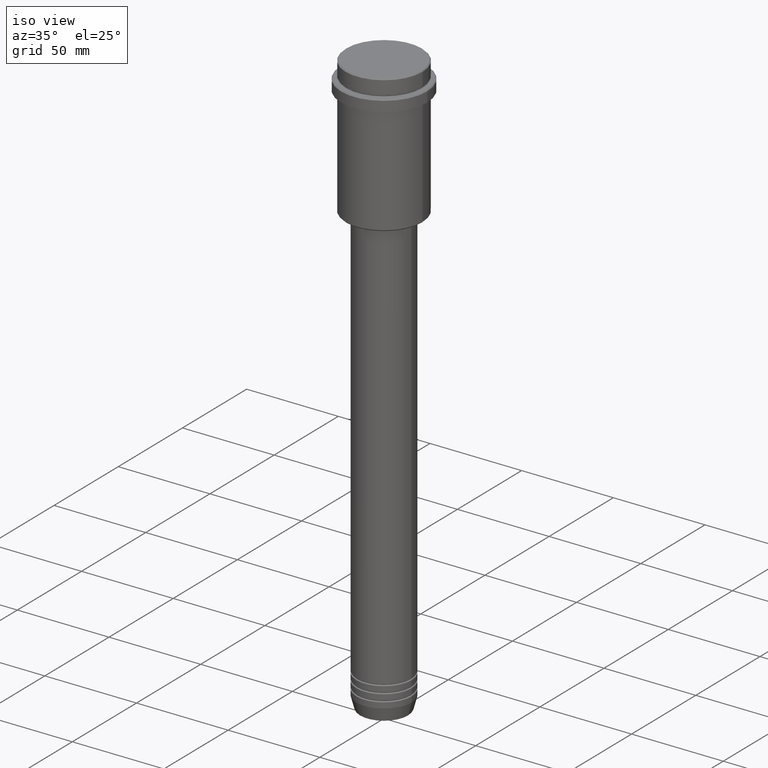
[diagram: clean part render]
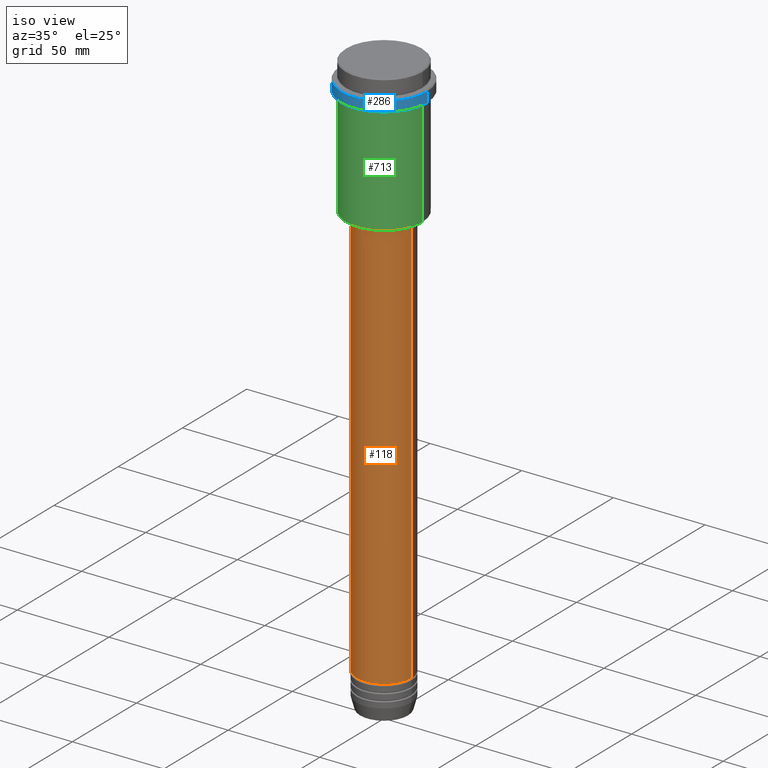
[diagram: same view with three faces highlighted in distinct colors, each labeled with its STEP entity id]
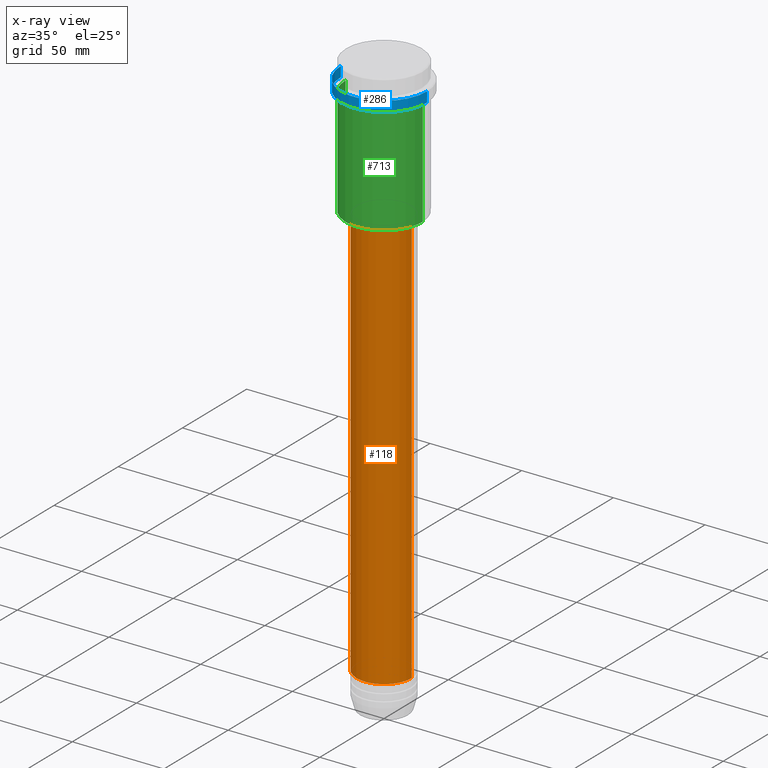
[diagram: x-ray of the same camera — body ghosted, the three highlighted faces saturated]
A machine part, iso view with three faces highlighted in distinct colors.
The next image is the same camera in x-ray (body ghosted, the three faces saturated) — at least one of them is partly hidden behind the body in this view.
Their STEP definitions:

[orange] entity #118 — the highlighted cylindrical surface (edge-blend (fillet) strip) has radius 15 mm, axis along (-0, -0, 1).
#29 = EDGE_CURVE ( 'NONE', #243, #1258, #860, .T. ) ;
#33 = DIRECTION ( 'NONE',  ( 1.000000000000000000, 0.000000000000000000, 0.000000000000000000 ) ) ;
#86 = CARTESIAN_POINT ( 'NONE',  ( -15.00000000000000000, 1.836970198721029589E-15, -300.9999999999998863 ) ) ;
#99 = AXIS2_PLACEMENT_3D ( 'NONE', #1326, #696, #1014 ) ;
#118 = ADVANCED_FACE ( 'NONE', ( #471 ), #1203, .T. ) ;
#148 = VECTOR ( 'NONE', #1082, 1000.000000000000000 ) ;
#243 = VERTEX_POINT ( 'NONE', #404 ) ;
#260 = DIRECTION ( 'NONE',  ( -0.000000000000000000, -0.000000000000000000, 1.000000000000000000 ) ) ;
#278 = CARTESIAN_POINT ( 'NONE',  ( -15.00000000000000000, 1.836970198721029589E-15, -75.99999999999992895 ) ) ;
#288 = ORIENTED_EDGE ( 'NONE', *, *, #29, .T. ) ;
#331 = DIRECTION ( 'NONE',  ( -0.000000000000000000, -0.000000000000000000, 1.000000000000000000 ) ) ;
#337 = CARTESIAN_POINT ( 'NONE',  ( -15.00000000000000000, 1.836970198721029589E-15, 0.000000000000000000 ) ) ;
#394 = EDGE_LOOP ( 'NONE', ( #1372, #815, #288, #406 ) ) ;
#404 = CARTESIAN_POINT ( 'NONE',  ( 15.00000000000000000, 0.000000000000000000, -300.9999999999998863 ) ) ;
#406 = ORIENTED_EDGE ( 'NONE', *, *, #1128, .F. ) ;
#450 = EDGE_CURVE ( 'NONE', #1270, #726, #1076, .T. ) ;
#471 = FACE_OUTER_BOUND ( 'NONE', #394, .T. ) ;
#480 = CARTESIAN_POINT ( 'NONE',  ( 0.000000000000000000, 0.000000000000000000, -300.9999999999998863 ) ) ;
#641 = CIRCLE ( 'NONE', #684, 15.00000000000000000 ) ;
#649 = EDGE_CURVE ( 'NONE', #1270, #243, #641, .T. ) ;
#682 = DIRECTION ( 'NONE',  ( 1.000000000000000000, 0.000000000000000000, 0.000000000000000000 ) ) ;
#684 = AXIS2_PLACEMENT_3D ( 'NONE', #480, #886, #682 ) ;
#696 = DIRECTION ( 'NONE',  ( -0.000000000000000000, -0.000000000000000000, 1.000000000000000000 ) ) ;
#726 = VERTEX_POINT ( 'NONE', #278 ) ;
#815 = ORIENTED_EDGE ( 'NONE', *, *, #649, .T. ) ;
#860 = LINE ( 'NONE', #1282, #148 ) ;
#871 = VECTOR ( 'NONE', #331, 1000.000000000000000 ) ;
#886 = DIRECTION ( 'NONE',  ( -0.000000000000000000, -0.000000000000000000, 1.000000000000000000 ) ) ;
#1014 = DIRECTION ( 'NONE',  ( 1.000000000000000000, 0.000000000000000000, 0.000000000000000000 ) ) ;
#1064 = CARTESIAN_POINT ( 'NONE',  ( 15.00000000000000000, 0.000000000000000000, -75.99999999999992895 ) ) ;
#1076 = LINE ( 'NONE', #337, #871 ) ;
#1082 = DIRECTION ( 'NONE',  ( -0.000000000000000000, -0.000000000000000000, 1.000000000000000000 ) ) ;
#1128 = EDGE_CURVE ( 'NONE', #726, #1258, #1340, .T. ) ;
#1141 = AXIS2_PLACEMENT_3D ( 'NONE', #1230, #260, #33 ) ;
#1203 = CYLINDRICAL_SURFACE ( 'NONE', #99, 15.00000000000000000 ) ;
#1230 = CARTESIAN_POINT ( 'NONE',  ( 0.000000000000000000, 0.000000000000000000, -75.99999999999992895 ) ) ;
#1258 = VERTEX_POINT ( 'NONE', #1064 ) ;
#1270 = VERTEX_POINT ( 'NONE', #86 ) ;
#1282 = CARTESIAN_POINT ( 'NONE',  ( 15.00000000000000000, 0.000000000000000000, 0.000000000000000000 ) ) ;
#1326 = CARTESIAN_POINT ( 'NONE',  ( 0.000000000000000000, 0.000000000000000000, 0.000000000000000000 ) ) ;
#1340 = CIRCLE ( 'NONE', #1141, 15.00000000000000000 ) ;
#1372 = ORIENTED_EDGE ( 'NONE', *, *, #450, .F. ) ;

[blue] entity #286 — the highlighted cylindrical surface (partial cylindrical patch) has radius 23.5 mm, axis along (-0, -0, 1).
#54 = DIRECTION ( 'NONE',  ( -0.000000000000000000, -0.000000000000000000, 1.000000000000000000 ) ) ;
#126 = AXIS2_PLACEMENT_3D ( 'NONE', #792, #1324, #1305 ) ;
#227 = VECTOR ( 'NONE', #768, 1000.000000000000000 ) ;
#235 = ORIENTED_EDGE ( 'NONE', *, *, #1288, .T. ) ;
#266 = EDGE_CURVE ( 'NONE', #580, #1083, #1198, .T. ) ;
#274 = AXIS2_PLACEMENT_3D ( 'NONE', #1148, #612, #604 ) ;
#286 = ADVANCED_FACE ( 'NONE', ( #951 ), #1056, .T. ) ;
#361 = CARTESIAN_POINT ( 'NONE',  ( 23.50000000000000355, 0.000000000000000000, -15.00000000000000000 ) ) ;
#409 = CARTESIAN_POINT ( 'NONE',  ( 0.000000000000000000, 0.000000000000000000, 0.000000000000000000 ) ) ;
#416 = CIRCLE ( 'NONE', #126, 23.50000000000000000 ) ;
#435 = LINE ( 'NONE', #1302, #227 ) ;
#513 = DIRECTION ( 'NONE',  ( 1.000000000000000000, 0.000000000000000000, 0.000000000000000000 ) ) ;
#520 = LINE ( 'NONE', #843, #691 ) ;
#562 = EDGE_CURVE ( 'NONE', #997, #669, #416, .T. ) ;
#580 = VERTEX_POINT ( 'NONE', #798 ) ;
#604 = DIRECTION ( 'NONE',  ( 1.000000000000000000, 0.000000000000000000, 0.000000000000000000 ) ) ;
#612 = DIRECTION ( 'NONE',  ( -0.000000000000000000, -0.000000000000000000, 1.000000000000000000 ) ) ;
#619 = ORIENTED_EDGE ( 'NONE', *, *, #562, .T. ) ;
#629 = EDGE_LOOP ( 'NONE', ( #987, #1382, #235, #619 ) ) ;
#669 = VERTEX_POINT ( 'NONE', #814 ) ;
#691 = VECTOR ( 'NONE', #54, 1000.000000000000000 ) ;
#768 = DIRECTION ( 'NONE',  ( -0.000000000000000000, -0.000000000000000000, 1.000000000000000000 ) ) ;
#792 = CARTESIAN_POINT ( 'NONE',  ( 0.000000000000000000, 0.000000000000000000, -9.499999999999971578 ) ) ;
#798 = CARTESIAN_POINT ( 'NONE',  ( -23.50000000000000711, 2.877919977996281109E-15, -15.00000000000000000 ) ) ;
#814 = CARTESIAN_POINT ( 'NONE',  ( -23.50000000000000000, 2.877919977996280320E-15, -9.499999999999971578 ) ) ;
#843 = CARTESIAN_POINT ( 'NONE',  ( -23.50000000000000000, 2.877919977996280320E-15, 0.000000000000000000 ) ) ;
#951 = FACE_OUTER_BOUND ( 'NONE', #629, .T. ) ;
#987 = ORIENTED_EDGE ( 'NONE', *, *, #1186, .F. ) ;
#997 = VERTEX_POINT ( 'NONE', #1143 ) ;
#1039 = DIRECTION ( 'NONE',  ( -0.000000000000000000, -0.000000000000000000, 1.000000000000000000 ) ) ;
#1056 = CYLINDRICAL_SURFACE ( 'NONE', #1071, 23.50000000000000000 ) ;
#1071 = AXIS2_PLACEMENT_3D ( 'NONE', #409, #1039, #513 ) ;
#1083 = VERTEX_POINT ( 'NONE', #361 ) ;
#1143 = CARTESIAN_POINT ( 'NONE',  ( 23.50000000000000000, 0.000000000000000000, -9.499999999999971578 ) ) ;
#1148 = CARTESIAN_POINT ( 'NONE',  ( 0.000000000000000000, 0.000000000000000000, -15.00000000000000000 ) ) ;
#1186 = EDGE_CURVE ( 'NONE', #580, #669, #520, .T. ) ;
#1198 = CIRCLE ( 'NONE', #274, 23.50000000000000355 ) ;
#1288 = EDGE_CURVE ( 'NONE', #1083, #997, #435, .T. ) ;
#1302 = CARTESIAN_POINT ( 'NONE',  ( 23.50000000000000000, 0.000000000000000000, 0.000000000000000000 ) ) ;
#1305 = DIRECTION ( 'NONE',  ( 1.000000000000000000, 0.000000000000000000, 0.000000000000000000 ) ) ;
#1324 = DIRECTION ( 'NONE',  ( 0.000000000000000000, 0.000000000000000000, -1.000000000000000000 ) ) ;
#1382 = ORIENTED_EDGE ( 'NONE', *, *, #266, .T. ) ;

[green] entity #713 — the highlighted cylindrical surface (partial cylindrical patch) has radius 21 mm, axis along (-0, -0, 1).
#53 = ORIENTED_EDGE ( 'NONE', *, *, #1085, .T. ) ;
#93 = EDGE_CURVE ( 'NONE', #280, #499, #1112, .T. ) ;
#177 = EDGE_LOOP ( 'NONE', ( #254, #490, #53, #442 ) ) ;
#250 = AXIS2_PLACEMENT_3D ( 'NONE', #1027, #273, #906 ) ;
#254 = ORIENTED_EDGE ( 'NONE', *, *, #772, .F. ) ;
#273 = DIRECTION ( 'NONE',  ( -0.000000000000000000, -0.000000000000000000, 1.000000000000000000 ) ) ;
#280 = VERTEX_POINT ( 'NONE', #518 ) ;
#442 = ORIENTED_EDGE ( 'NONE', *, *, #1015, .F. ) ;
#486 = DIRECTION ( 'NONE',  ( -0.000000000000000000, -0.000000000000000000, 1.000000000000000000 ) ) ;
#490 = ORIENTED_EDGE ( 'NONE', *, *, #93, .T. ) ;
#499 = VERTEX_POINT ( 'NONE', #984 ) ;
#502 = FACE_OUTER_BOUND ( 'NONE', #177, .T. ) ;
#518 = CARTESIAN_POINT ( 'NONE',  ( -21.00000000000000000, 2.571758278209441661E-15, -74.50000000000002842 ) ) ;
#602 = CARTESIAN_POINT ( 'NONE',  ( 0.000000000000000000, 0.000000000000000000, 0.000000000000000000 ) ) ;
#610 = CARTESIAN_POINT ( 'NONE',  ( -21.00000000000000000, 2.571758278209441661E-15, 0.000000000000000000 ) ) ;
#685 = VERTEX_POINT ( 'NONE', #1202 ) ;
#705 = CARTESIAN_POINT ( 'NONE',  ( 21.00000000000000000, 0.000000000000000000, 0.000000000000000000 ) ) ;
#713 = ADVANCED_FACE ( 'NONE', ( #502 ), #1037, .T. ) ;
#772 = EDGE_CURVE ( 'NONE', #280, #685, #1378, .T. ) ;
#787 = DIRECTION ( 'NONE',  ( -1.000000000000000000, 0.000000000000000000, 0.000000000000000000 ) ) ;
#793 = DIRECTION ( 'NONE',  ( -0.000000000000000000, -0.000000000000000000, 1.000000000000000000 ) ) ;
#809 = VECTOR ( 'NONE', #1044, 1000.000000000000000 ) ;
#834 = DIRECTION ( 'NONE',  ( 1.000000000000000000, 0.000000000000000000, 0.000000000000000000 ) ) ;
#885 = VERTEX_POINT ( 'NONE', #890 ) ;
#890 = CARTESIAN_POINT ( 'NONE',  ( 21.00000000000000000, 0.000000000000000000, -16.00000000000000355 ) ) ;
#895 = AXIS2_PLACEMENT_3D ( 'NONE', #602, #1352, #834 ) ;
#906 = DIRECTION ( 'NONE',  ( 1.000000000000000000, 0.000000000000000000, 0.000000000000000000 ) ) ;
#984 = CARTESIAN_POINT ( 'NONE',  ( 21.00000000000000000, 0.000000000000000000, -74.50000000000002842 ) ) ;
#1015 = EDGE_CURVE ( 'NONE', #685, #885, #1293, .T. ) ;
#1026 = VECTOR ( 'NONE', #486, 1000.000000000000000 ) ;
#1027 = CARTESIAN_POINT ( 'NONE',  ( 0.000000000000000000, 0.000000000000000000, -16.00000000000000355 ) ) ;
#1037 = CYLINDRICAL_SURFACE ( 'NONE', #895, 21.00000000000000000 ) ;
#1044 = DIRECTION ( 'NONE',  ( -0.000000000000000000, -0.000000000000000000, 1.000000000000000000 ) ) ;
#1085 = EDGE_CURVE ( 'NONE', #499, #885, #1213, .T. ) ;
#1112 = CIRCLE ( 'NONE', #1241, 21.00000000000000000 ) ;
#1202 = CARTESIAN_POINT ( 'NONE',  ( -21.00000000000000000, 2.571758278209441661E-15, -16.00000000000000355 ) ) ;
#1213 = LINE ( 'NONE', #705, #1026 ) ;
#1228 = CARTESIAN_POINT ( 'NONE',  ( 0.000000000000000000, 0.000000000000000000, -74.50000000000002842 ) ) ;
#1241 = AXIS2_PLACEMENT_3D ( 'NONE', #1228, #793, #787 ) ;
#1293 = CIRCLE ( 'NONE', #250, 21.00000000000000000 ) ;
#1352 = DIRECTION ( 'NONE',  ( -0.000000000000000000, -0.000000000000000000, 1.000000000000000000 ) ) ;
#1378 = LINE ( 'NONE', #610, #809 ) ;